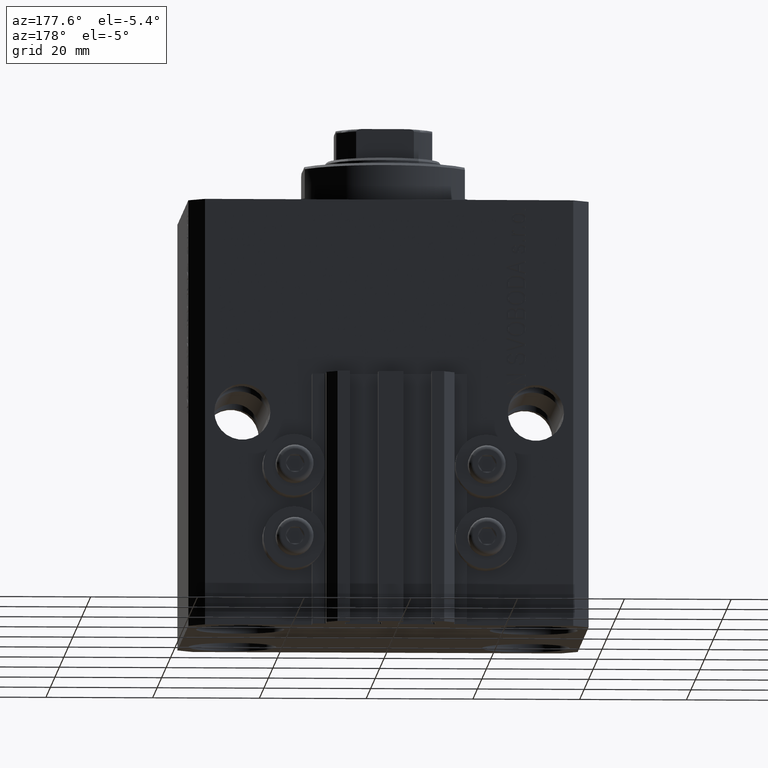
[diagram: clean part render]
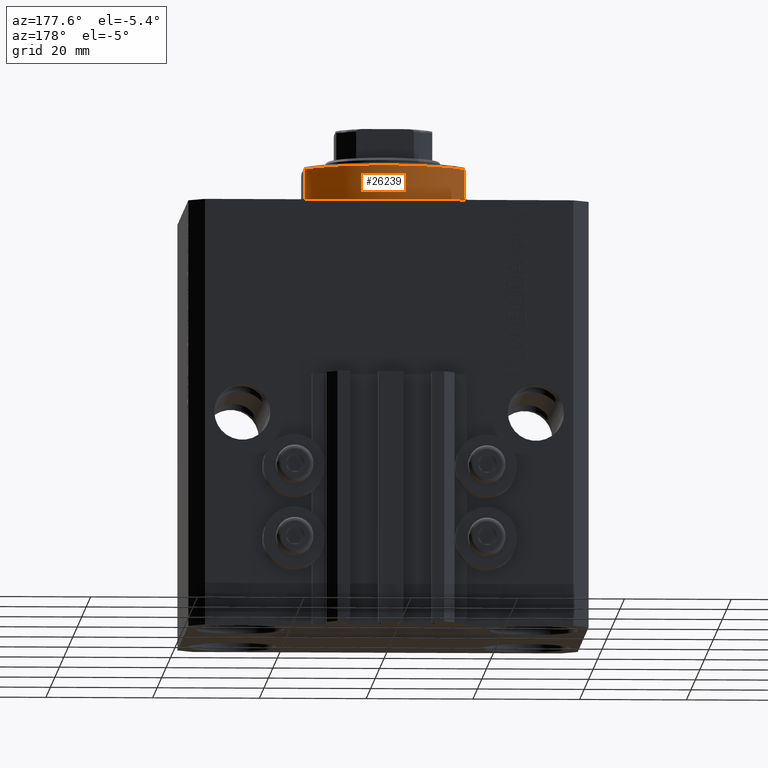
[diagram: same view with one face highlighted and labeled with its STEP entity id]
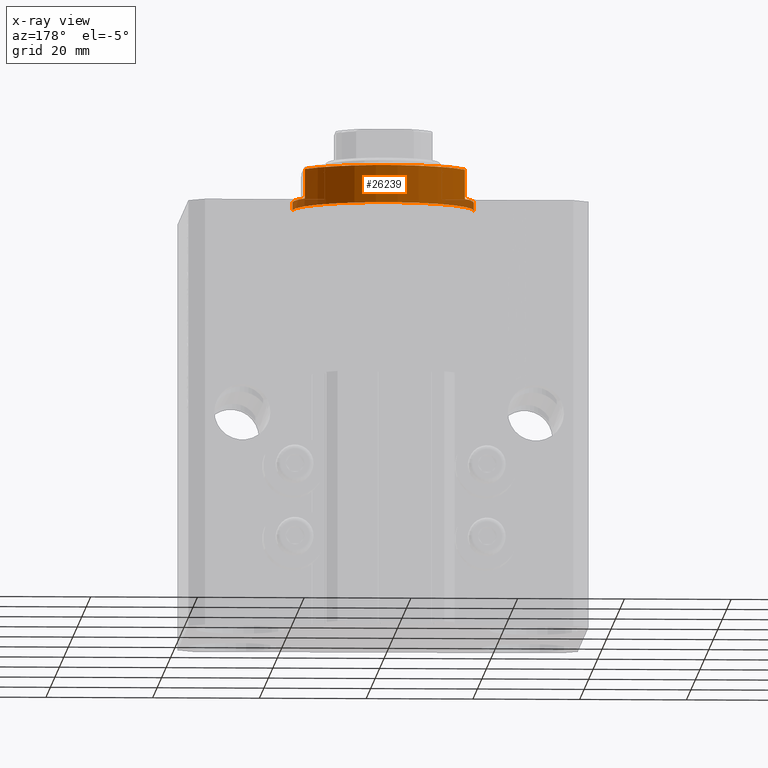
[diagram: x-ray of the same camera — body ghosted, the highlighted face saturated]
A machine part, auxiliary view. The second image highlights one B-rep face of the part: STEP entity #26239.
The next image is the same camera in x-ray: the body ghosted, the highlighted face saturated — about 7% of this face is hidden behind the body in this view.
In plain terms, the highlighted cylindrical surface (partial cylindrical patch) has radius 17 mm, axis along (0, 0, -1).
Its self-contained STEP definition (entity closure, byte-faithful):
#315 = ORIENTED_EDGE ( 'NONE', *, *, #40645, .T. ) ;
#341 = DIRECTION ( 'NONE',  ( 1.000000000000000000, 0.000000000000000000, 0.000000000000000000 ) ) ;
#978 = LINE ( 'NONE', #22289, #36992 ) ;
#1047 = AXIS2_PLACEMENT_3D ( 'NONE', #21872, #32778, #341 ) ;
#1607 = VERTEX_POINT ( 'NONE', #30216 ) ;
#1684 = VERTEX_POINT ( 'NONE', #23817 ) ;
#2303 = CIRCLE ( 'NONE', #33324, 17.00000000000000000 ) ;
#4468 = DIRECTION ( 'NONE',  ( -1.000000000000000000, 0.000000000000000000, 0.000000000000000000 ) ) ;
#4508 = EDGE_CURVE ( 'NONE', #22292, #9210, #19990, .T. ) ;
#4597 = FACE_OUTER_BOUND ( 'NONE', #14927, .T. ) ;
#5178 = VERTEX_POINT ( 'NONE', #19298 ) ;
#6914 = LINE ( 'NONE', #32716, #25889 ) ;
#7402 = EDGE_CURVE ( 'NONE', #5178, #1607, #978, .T. ) ;
#7439 = CYLINDRICAL_SURFACE ( 'NONE', #1047, 17.00000000000000000 ) ;
#8108 = DIRECTION ( 'NONE',  ( 0.000000000000000000, 0.000000000000000000, 1.000000000000000000 ) ) ;
#8521 = DIRECTION ( 'NONE',  ( -0.000000000000000000, -0.000000000000000000, -1.000000000000000000 ) ) ;
#9210 = VERTEX_POINT ( 'NONE', #34286 ) ;
#11666 = CARTESIAN_POINT ( 'NONE',  ( 17.00000000000000000, 0.000000000000000000, -2.000000000000000000 ) ) ;
#12494 = ORIENTED_EDGE ( 'NONE', *, *, #43479, .F. ) ;
#13034 = DIRECTION ( 'NONE',  ( -1.000000000000000000, 0.000000000000000000, 0.000000000000000000 ) ) ;
#14885 = DIRECTION ( 'NONE',  ( 0.000000000000000000, 0.000000000000000000, -1.000000000000000000 ) ) ;
#14927 = EDGE_LOOP ( 'NONE', ( #12494, #315, #22624, #42766, #27328, #40721, #28613, #32289 ) ) ;
#15177 = DIRECTION ( 'NONE',  ( -0.000000000000000000, -0.000000000000000000, 1.000000000000000000 ) ) ;
#15477 = EDGE_CURVE ( 'NONE', #44478, #1684, #2303, .T. ) ;
#15964 = CARTESIAN_POINT ( 'NONE',  ( 17.00000000000000000, 0.000000000000000000, -8.000000000000000000 ) ) ;
#18289 = DIRECTION ( 'NONE',  ( -1.000000000000000000, 0.000000000000000000, 0.000000000000000000 ) ) ;
#19298 = CARTESIAN_POINT ( 'NONE',  ( 15.00000000000000000, 8.000000000000001776, -7.500000000000007105 ) ) ;
#19937 = CIRCLE ( 'NONE', #44137, 17.00000000000000000 ) ;
#19990 = LINE ( 'NONE', #41759, #26198 ) ;
#21102 = EDGE_CURVE ( 'NONE', #5178, #22292, #28170, .T. ) ;
#21872 = CARTESIAN_POINT ( 'NONE',  ( 0.000000000000000000, 0.000000000000000000, -8.000000000000000000 ) ) ;
#22289 = CARTESIAN_POINT ( 'NONE',  ( 15.00000000000000000, 8.000000000000001776, -8.000000000000000000 ) ) ;
#22292 = VERTEX_POINT ( 'NONE', #45544 ) ;
#22624 = ORIENTED_EDGE ( 'NONE', *, *, #15477, .T. ) ;
#22725 = DIRECTION ( 'NONE',  ( 1.000000000000000000, 0.000000000000000000, 0.000000000000000000 ) ) ;
#23817 = CARTESIAN_POINT ( 'NONE',  ( 17.00000000000000000, 0.000000000000000000, -0.5000000000000004441 ) ) ;
#23918 = VERTEX_POINT ( 'NONE', #26978 ) ;
#25889 = VECTOR ( 'NONE', #42657, 1000.000000000000000 ) ;
#26198 = VECTOR ( 'NONE', #34208, 1000.000000000000000 ) ;
#26239 = ADVANCED_FACE ( 'NONE', ( #4597 ), #7439, .T. ) ;
#26485 = EDGE_CURVE ( 'NONE', #1607, #46038, #19937, .T. ) ;
#26978 = CARTESIAN_POINT ( 'NONE',  ( -17.00000000000000000, 2.081899558550500280E-15, -2.000000000000000000 ) ) ;
#27308 = DIRECTION ( 'NONE',  ( -0.000000000000000000, -0.000000000000000000, 1.000000000000000000 ) ) ;
#27328 = ORIENTED_EDGE ( 'NONE', *, *, #26485, .F. ) ;
#28170 = CIRCLE ( 'NONE', #34243, 17.00000000000000000 ) ;
#28613 = ORIENTED_EDGE ( 'NONE', *, *, #21102, .T. ) ;
#28890 = AXIS2_PLACEMENT_3D ( 'NONE', #36910, #14885, #4468 ) ;
#29824 = CARTESIAN_POINT ( 'NONE',  ( 0.000000000000000000, 0.000000000000000000, -0.5000000000000004441 ) ) ;
#30216 = CARTESIAN_POINT ( 'NONE',  ( 14.99999999999999645, 8.000000000000003553, -2.000000000000000000 ) ) ;
#30797 = CARTESIAN_POINT ( 'NONE',  ( 0.000000000000000000, 0.000000000000000000, -2.000000000000000000 ) ) ;
#32289 = ORIENTED_EDGE ( 'NONE', *, *, #4508, .T. ) ;
#32716 = CARTESIAN_POINT ( 'NONE',  ( -17.00000000000000000, 2.081899558550500280E-15, -8.000000000000000000 ) ) ;
#32778 = DIRECTION ( 'NONE',  ( -0.000000000000000000, -0.000000000000000000, 1.000000000000000000 ) ) ;
#33227 = EDGE_CURVE ( 'NONE', #46038, #1684, #38227, .T. ) ;
#33324 = AXIS2_PLACEMENT_3D ( 'NONE', #29824, #8521, #22725 ) ;
#33788 = CARTESIAN_POINT ( 'NONE',  ( -17.00000000000000000, 2.081899558550500280E-15, -0.5000000000000004441 ) ) ;
#34208 = DIRECTION ( 'NONE',  ( -0.000000000000000000, -0.000000000000000000, 1.000000000000000000 ) ) ;
#34243 = AXIS2_PLACEMENT_3D ( 'NONE', #46704, #8108, #18289 ) ;
#34286 = CARTESIAN_POINT ( 'NONE',  ( -14.99999999999999645, 8.000000000000003553, -2.000000000000000000 ) ) ;
#36252 = VECTOR ( 'NONE', #27308, 1000.000000000000000 ) ;
#36910 = CARTESIAN_POINT ( 'NONE',  ( 0.000000000000000000, 0.000000000000000000, -2.000000000000000000 ) ) ;
#36992 = VECTOR ( 'NONE', #15177, 1000.000000000000000 ) ;
#38227 = LINE ( 'NONE', #15964, #36252 ) ;
#40645 = EDGE_CURVE ( 'NONE', #23918, #44478, #6914, .T. ) ;
#40721 = ORIENTED_EDGE ( 'NONE', *, *, #7402, .F. ) ;
#41737 = CIRCLE ( 'NONE', #28890, 17.00000000000000000 ) ;
#41759 = CARTESIAN_POINT ( 'NONE',  ( -15.00000000000000000, 8.000000000000001776, -8.000000000000000000 ) ) ;
#42657 = DIRECTION ( 'NONE',  ( -0.000000000000000000, -0.000000000000000000, 1.000000000000000000 ) ) ;
#42766 = ORIENTED_EDGE ( 'NONE', *, *, #33227, .F. ) ;
#43479 = EDGE_CURVE ( 'NONE', #23918, #9210, #41737, .T. ) ;
#44137 = AXIS2_PLACEMENT_3D ( 'NONE', #30797, #44548, #13034 ) ;
#44478 = VERTEX_POINT ( 'NONE', #33788 ) ;
#44548 = DIRECTION ( 'NONE',  ( 0.000000000000000000, 0.000000000000000000, -1.000000000000000000 ) ) ;
#45544 = CARTESIAN_POINT ( 'NONE',  ( -15.00000000000000000, 8.000000000000001776, -7.500000000000007105 ) ) ;
#46038 = VERTEX_POINT ( 'NONE', #11666 ) ;
#46704 = CARTESIAN_POINT ( 'NONE',  ( 0.000000000000000000, 0.000000000000000000, -7.500000000000007105 ) ) ;